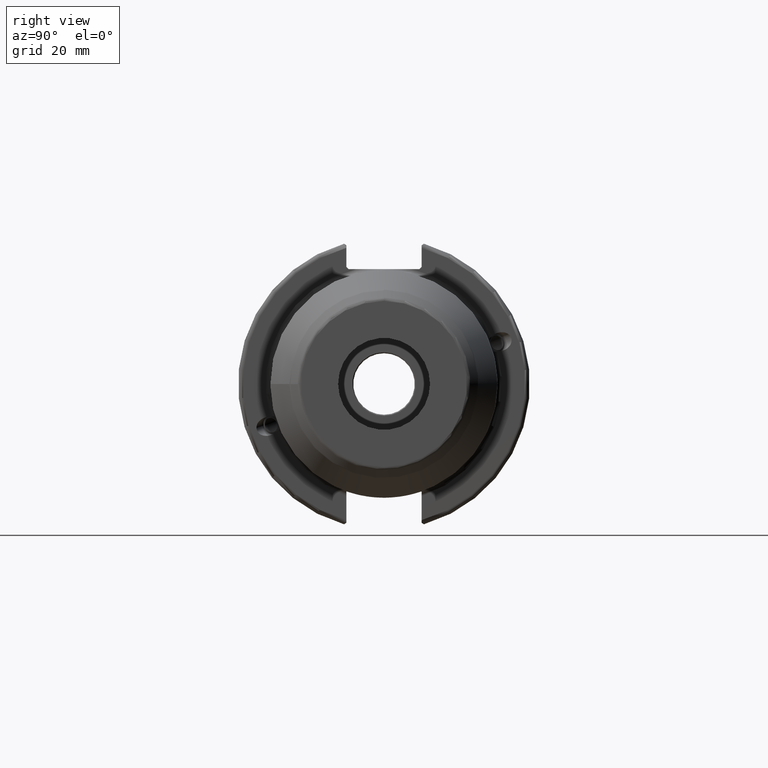
[diagram: clean part render]
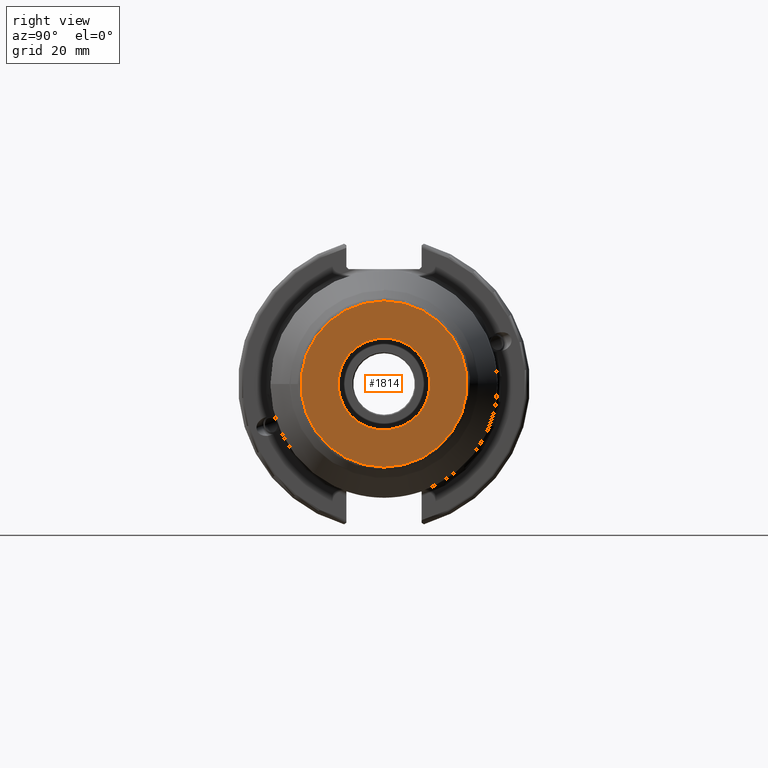
[diagram: same view with one face highlighted and labeled with its STEP entity id]
A machine part, right view. The second image highlights one B-rep face of the part: STEP entity #1814.
In plain terms, the highlighted planar face has unit normal (1, 0, 0).
Its self-contained STEP definition (entity closure, byte-faithful):
#63=FACE_BOUND('',#498,.T.);
#78=PLANE('',#2002);
#391=FACE_OUTER_BOUND('',#497,.T.);
#497=EDGE_LOOP('',(#1331));
#498=EDGE_LOOP('',(#1332));
#654=CIRCLE('',#2000,18.0857864376269);
#656=CIRCLE('',#2003,10.);
#773=VERTEX_POINT('',#2975);
#774=VERTEX_POINT('',#2979);
#982=EDGE_CURVE('',#773,#773,#654,.T.);
#984=EDGE_CURVE('',#774,#774,#656,.T.);
#1331=ORIENTED_EDGE('',*,*,#982,.F.);
#1332=ORIENTED_EDGE('',*,*,#984,.F.);
#1814=ADVANCED_FACE('',(#391,#63),#78,.T.);
#2000=AXIS2_PLACEMENT_3D('',#2976,#2344,#2345);
#2002=AXIS2_PLACEMENT_3D('',#2978,#2348,#2349);
#2003=AXIS2_PLACEMENT_3D('',#2980,#2350,#2351);
#2344=DIRECTION('center_axis',(-1.,0.,0.));
#2345=DIRECTION('ref_axis',(0.,-1.,1.83697019872103E-16));
#2348=DIRECTION('center_axis',(1.,0.,0.));
#2349=DIRECTION('ref_axis',(0.,0.,-1.));
#2350=DIRECTION('center_axis',(1.,0.,0.));
#2351=DIRECTION('ref_axis',(0.,0.,-1.));
#2975=CARTESIAN_POINT('',(64.5,-2.21487004709024E-15,18.0857864376269));
#2976=CARTESIAN_POINT('Origin',(64.5,0.,0.));
#2978=CARTESIAN_POINT('Origin',(64.5,10.,0.));
#2979=CARTESIAN_POINT('',(64.5,-9.99999999999999,-1.22464679914735E-15));
#2980=CARTESIAN_POINT('Origin',(64.5,0.,0.));